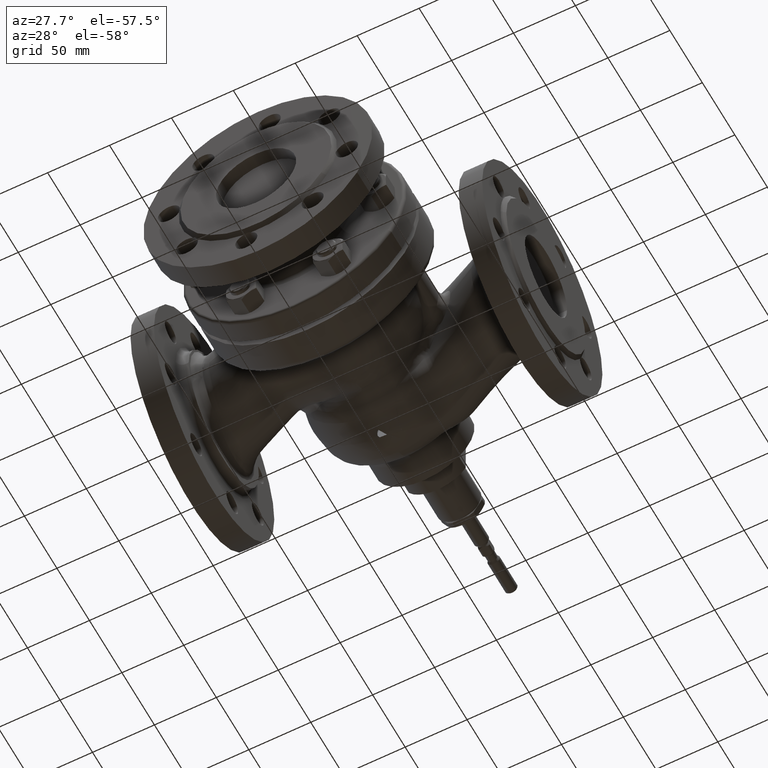
[diagram: clean part render]
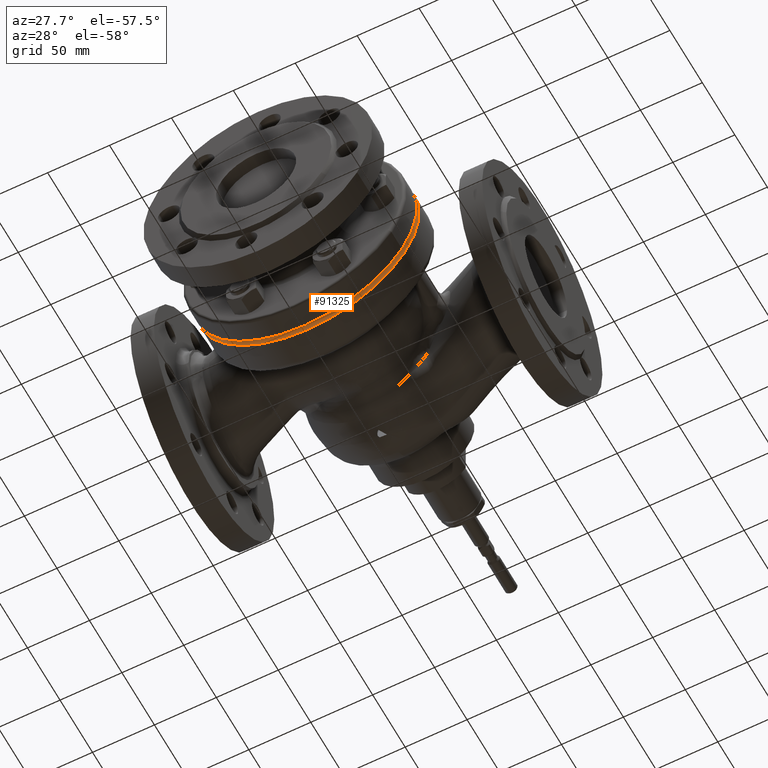
[diagram: same view with one face highlighted and labeled with its STEP entity id]
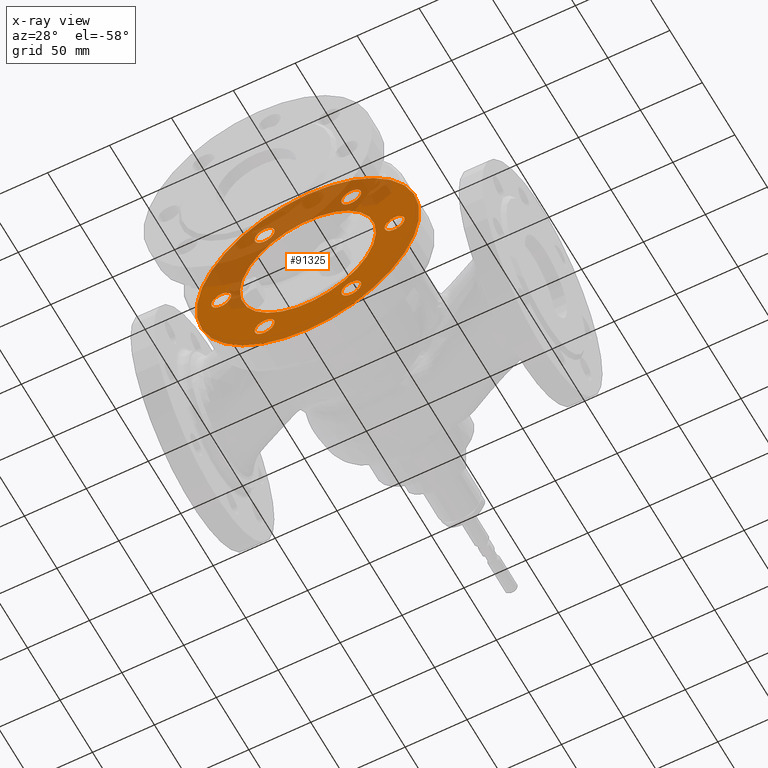
[diagram: x-ray of the same camera — body ghosted, the highlighted face saturated]
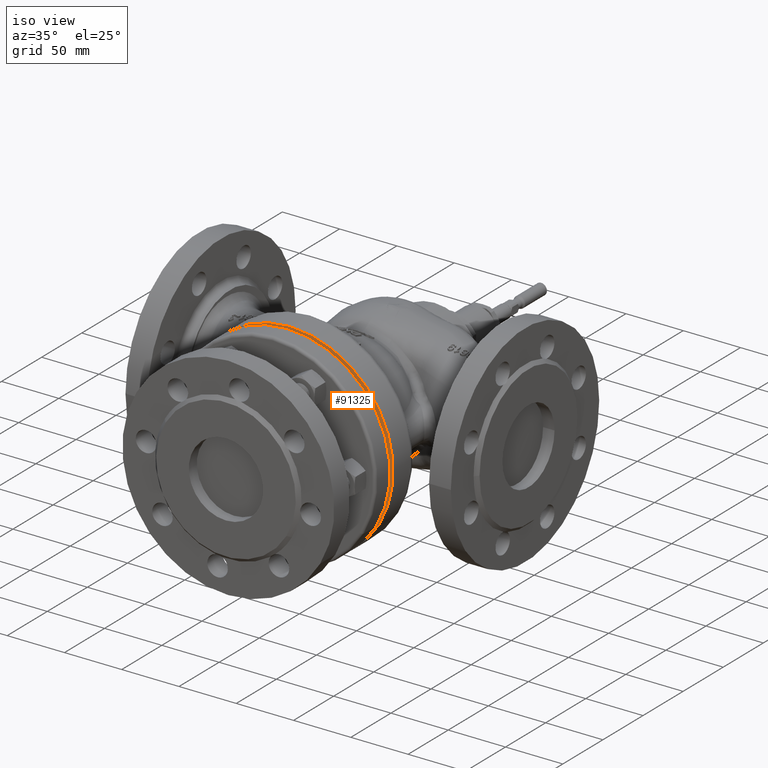
[diagram: same view with one face highlighted and labeled with its STEP entity id]
A machine part, auxiliary view. The second image highlights one B-rep face of the part: STEP entity #91325.
The next image is the same camera in x-ray: the body ghosted, the highlighted face saturated — about 38% of this face is hidden behind the body in this view.
A second angle (iso view) of the same face is appended — the face is thin or edge-on in the first view.
In plain terms, the highlighted planar face has unit normal (0, 1, 0).
Its self-contained STEP definition (entity closure, byte-faithful):
#74 = DIRECTION ( 'NONE',  ( 0.0000000000000000000, 1.000000000000000000, 0.0000000000000000000 ) ) ;
#107 = DIRECTION ( 'NONE',  ( 0.0000000000000000000, 0.0000000000000000000, 1.000000000000000000 ) ) ;
#292 = DIRECTION ( 'NONE',  ( 0.0000000000000000000, 0.0000000000000000000, 1.000000000000000000 ) ) ;
#461 = DIRECTION ( 'NONE',  ( 0.0000000000000000000, 1.541976423090495100E-016, -1.000000000000000000 ) ) ;
#1163 = EDGE_CURVE ( 'NONE', #89899, #155190, #170970, .T. ) ;
#1895 = EDGE_CURVE ( 'NONE', #111494, #47074, #165879, .T. ) ;
#2408 = DIRECTION ( 'NONE',  ( 0.8660254037844362700, 0.0000000000000000000, -0.5000000000000043300 ) ) ;
#4470 = CARTESIAN_POINT ( 'NONE',  ( 35.00000000000049700, -90.00000000000000000, -60.62177826491040400 ) ) ;
#7475 = VERTEX_POINT ( 'NONE', #70118 ) ;
#7865 = EDGE_CURVE ( 'NONE', #111752, #97873, #40907, .T. ) ;
#8305 = DIRECTION ( 'NONE',  ( -0.8660254037844432600, 0.0000000000000000000, -0.4999999999999920600 ) ) ;
#8698 = DIRECTION ( 'NONE',  ( 0.8660254037844362700, 0.0000000000000000000, -0.5000000000000043300 ) ) ;
#9993 = EDGE_CURVE ( 'NONE', #47074, #111494, #121853, .T. ) ;
#10925 = DIRECTION ( 'NONE',  ( 0.0000000000000000000, 1.000000000000000000, 0.0000000000000000000 ) ) ;
#12993 = ORIENTED_EDGE ( 'NONE', *, *, #102907, .T. ) ;
#14054 = FACE_BOUND ( 'NONE', #132637, .T. ) ;
#14297 = EDGE_CURVE ( 'NONE', #132367, #169173, #14431, .T. ) ;
#14431 = CIRCLE ( 'NONE', #60126, 8.000000000000000000 ) ;
#14493 = ORIENTED_EDGE ( 'NONE', *, *, #1895, .T. ) ;
#16442 = EDGE_CURVE ( 'NONE', #136290, #127119, #49388, .T. ) ;
#17475 = CARTESIAN_POINT ( 'NONE',  ( 4.024558463747165400E-013, -90.00000000000000000, -2.697495006043932700E-013 ) ) ;
#18435 = FACE_OUTER_BOUND ( 'NONE', #41684, .T. ) ;
#18530 = DIRECTION ( 'NONE',  ( -6.938893903907228400E-015, 0.0000000000000000000, -1.000000000000000000 ) ) ;
#20182 = CIRCLE ( 'NONE', #103222, 7.999999999999996400 ) ;
#20998 = AXIS2_PLACEMENT_3D ( 'NONE', #151590, #81859, #179751 ) ;
#25734 = AXIS2_PLACEMENT_3D ( 'NONE', #170018, #86193, #2408 ) ;
#28453 = ORIENTED_EDGE ( 'NONE', *, *, #59853, .T. ) ;
#28752 = DIRECTION ( 'NONE',  ( -0.0000000000000000000, 1.000000000000000000, 0.0000000000000000000 ) ) ;
#29100 = EDGE_LOOP ( 'NONE', ( #46672, #138188 ) ) ;
#29376 = DIRECTION ( 'NONE',  ( 0.0000000000000000000, 1.000000000000000000, -0.0000000000000000000 ) ) ;
#30862 = EDGE_CURVE ( 'NONE', #169881, #143303, #95028, .T. ) ;
#31512 = DIRECTION ( 'NONE',  ( 0.0000000000000000000, 0.0000000000000000000, 1.000000000000000000 ) ) ;
#32414 = EDGE_CURVE ( 'NONE', #143303, #169881, #73089, .T. ) ;
#36828 = CARTESIAN_POINT ( 'NONE',  ( 35.00000000000044100, -90.00000000000000000, -68.62177826491040400 ) ) ;
#37839 = AXIS2_PLACEMENT_3D ( 'NONE', #167896, #84090, #292 ) ;
#40907 = CIRCLE ( 'NONE', #137207, 54.90000000000000600 ) ;
#41684 = EDGE_LOOP ( 'NONE', ( #87191, #150300 ) ) ;
#44016 = VERTEX_POINT ( 'NONE', #115941 ) ;
#46672 = ORIENTED_EDGE ( 'NONE', *, *, #32414, .T. ) ;
#46821 = CARTESIAN_POINT ( 'NONE',  ( -63.07179676972453600, -90.00000000000000000, -4.000000000000331300 ) ) ;
#47074 = VERTEX_POINT ( 'NONE', #97797 ) ;
#49388 = CIRCLE ( 'NONE', #84726, 7.999999999999996400 ) ;
#51290 = FACE_BOUND ( 'NONE', #29100, .T. ) ;
#51310 = AXIS2_PLACEMENT_3D ( 'NONE', #112575, #28752, #126641 ) ;
#55123 = CARTESIAN_POINT ( 'NONE',  ( -76.92820323027545700, -90.00000000000000000, 3.999999999999830800 ) ) ;
#56494 = ORIENTED_EDGE ( 'NONE', *, *, #9993, .T. ) ;
#59853 = EDGE_CURVE ( 'NONE', #75343, #176502, #109263, .T. ) ;
#60045 = FACE_BOUND ( 'NONE', #179371, .T. ) ;
#60126 = AXIS2_PLACEMENT_3D ( 'NONE', #4470, #102305, #18530 ) ;
#60493 = EDGE_LOOP ( 'NONE', ( #119595, #72181 ) ) ;
#66631 = DIRECTION ( 'NONE',  ( -0.0000000000000000000, 1.000000000000000000, -0.0000000000000000000 ) ) ;
#67710 = CARTESIAN_POINT ( 'NONE',  ( -69.99999999999998600, -90.00000000000000000, -2.498001805406602200E-013 ) ) ;
#68838 = ORIENTED_EDGE ( 'NONE', *, *, #181186, .T. ) ;
#69567 = CIRCLE ( 'NONE', #98167, 90.00000000000000000 ) ;
#70118 = CARTESIAN_POINT ( 'NONE',  ( 0.0000000000000000000, -89.99999999999998600, -90.00000000000000000 ) ) ;
#72019 = CARTESIAN_POINT ( 'NONE',  ( -35.00000000000091700, -90.00000000000000000, 68.62177826491017600 ) ) ;
#72181 = ORIENTED_EDGE ( 'NONE', *, *, #118519, .F. ) ;
#72961 = CIRCLE ( 'NONE', #94673, 7.999999999999995600 ) ;
#73089 = CIRCLE ( 'NONE', #81517, 8.000000000000007100 ) ;
#73843 = ORIENTED_EDGE ( 'NONE', *, *, #1163, .T. ) ;
#74226 = CARTESIAN_POINT ( 'NONE',  ( 0.0000000000000000000, -90.00000000000000000, 0.0000000000000000000 ) ) ;
#75343 = VERTEX_POINT ( 'NONE', #174397 ) ;
#77282 = AXIS2_PLACEMENT_3D ( 'NONE', #168059, #84254, #461 ) ;
#80931 = DIRECTION ( 'NONE',  ( -0.0000000000000000000, 1.000000000000000000, 0.0000000000000000000 ) ) ;
#81517 = AXIS2_PLACEMENT_3D ( 'NONE', #150427, #66631, #164471 ) ;
#81770 = DIRECTION ( 'NONE',  ( -0.8660254037844327100, 0.0000000000000000000, 0.5000000000000103300 ) ) ;
#81859 = DIRECTION ( 'NONE',  ( 0.0000000000000000000, 1.000000000000000000, 1.665334536937735300E-016 ) ) ;
#82360 = EDGE_LOOP ( 'NONE', ( #73843, #115975 ) ) ;
#83234 = CARTESIAN_POINT ( 'NONE',  ( -35.00000000000091700, -90.00000000000000000, 52.62177826491016200 ) ) ;
#83866 = CARTESIAN_POINT ( 'NONE',  ( -34.99999999999963100, -90.00000000000000000, -60.62177826491090100 ) ) ;
#83901 = DIRECTION ( 'NONE',  ( -0.0000000000000000000, 1.000000000000000000, -0.0000000000000000000 ) ) ;
#84090 = DIRECTION ( 'NONE',  ( -0.0000000000000000000, -1.000000000000000000, 0.0000000000000000000 ) ) ;
#84254 = DIRECTION ( 'NONE',  ( 0.0000000000000000000, 1.000000000000000000, -0.0000000000000000000 ) ) ;
#84726 = AXIS2_PLACEMENT_3D ( 'NONE', #113199, #29376, #127274 ) ;
#86193 = DIRECTION ( 'NONE',  ( 0.0000000000000000000, 1.000000000000000000, 0.0000000000000000000 ) ) ;
#87191 = ORIENTED_EDGE ( 'NONE', *, *, #91962, .F. ) ;
#88265 = DIRECTION ( 'NONE',  ( 0.0000000000000000000, 1.541976423090495100E-016, -1.000000000000000000 ) ) ;
#88437 = FACE_BOUND ( 'NONE', #166881, .T. ) ;
#89899 = VERTEX_POINT ( 'NONE', #174745 ) ;
#91107 = EDGE_CURVE ( 'NONE', #169173, #132367, #130058, .T. ) ;
#91325 = ADVANCED_FACE ( 'NONE', ( #18435, #162870, #125667, #88437, #60045, #51290, #14054, #158491 ), #109377, .F. ) ;
#91962 = EDGE_CURVE ( 'NONE', #7475, #44016, #116894, .T. ) ;
#92078 = DIRECTION ( 'NONE',  ( 0.0000000000000000000, 1.000000000000000000, 0.0000000000000000000 ) ) ;
#92470 = ORIENTED_EDGE ( 'NONE', *, *, #16442, .T. ) ;
#92478 = DIRECTION ( 'NONE',  ( 0.0000000000000000000, 1.000000000000000000, 0.0000000000000000000 ) ) ;
#94362 = AXIS2_PLACEMENT_3D ( 'NONE', #167700, #83901, #107 ) ;
#94673 = AXIS2_PLACEMENT_3D ( 'NONE', #175932, #92078, #8305 ) ;
#94705 = CARTESIAN_POINT ( 'NONE',  ( 35.00000000000049700, -90.00000000000000000, -60.62177826491040400 ) ) ;
#95028 = CIRCLE ( 'NONE', #94362, 8.000000000000007100 ) ;
#97797 = CARTESIAN_POINT ( 'NONE',  ( 63.07179676972452100, -90.00000000000000000, 4.000000000000776300 ) ) ;
#97873 = VERTEX_POINT ( 'NONE', #112795 ) ;
#97912 = DIRECTION ( 'NONE',  ( -0.8660254037844432600, 0.0000000000000000000, -0.4999999999999920600 ) ) ;
#98167 = AXIS2_PLACEMENT_3D ( 'NONE', #74226, #172104, #88265 ) ;
#99239 = ORIENTED_EDGE ( 'NONE', *, *, #91107, .T. ) ;
#102305 = DIRECTION ( 'NONE',  ( 0.0000000000000000000, 1.000000000000000000, 0.0000000000000000000 ) ) ;
#102713 = EDGE_LOOP ( 'NONE', ( #28453, #68838 ) ) ;
#102907 = EDGE_CURVE ( 'NONE', #127119, #136290, #20182, .T. ) ;
#103222 = AXIS2_PLACEMENT_3D ( 'NONE', #67710, #165549, #81770 ) ;
#108777 = DIRECTION ( 'NONE',  ( -6.938893903907228400E-015, 0.0000000000000000000, -1.000000000000000000 ) ) ;
#109263 = CIRCLE ( 'NONE', #113631, 7.999999999999995600 ) ;
#109377 = PLANE ( 'NONE',  #20998 ) ;
#111494 = VERTEX_POINT ( 'NONE', #169498 ) ;
#111752 = VERTEX_POINT ( 'NONE', #115621 ) ;
#112575 = CARTESIAN_POINT ( 'NONE',  ( 34.99999999999921100, -90.00000000000000000, 60.62177826491115000 ) ) ;
#112795 = CARTESIAN_POINT ( 'NONE',  ( 47.54479466778539600, -90.00000000000000000, -27.44999999996682800 ) ) ;
#113199 = CARTESIAN_POINT ( 'NONE',  ( -69.99999999999998600, -90.00000000000000000, -2.498001805406602200E-013 ) ) ;
#113602 = AXIS2_PLACEMENT_3D ( 'NONE', #164706, #80931, #178828 ) ;
#113631 = AXIS2_PLACEMENT_3D ( 'NONE', #83866, #74, #97912 ) ;
#115327 = DIRECTION ( 'NONE',  ( -0.0000000000000000000, -1.000000000000000000, 0.0000000000000000000 ) ) ;
#115621 = CARTESIAN_POINT ( 'NONE',  ( -47.54479466778458600, -90.00000000000000000, 27.44999999996629500 ) ) ;
#115941 = CARTESIAN_POINT ( 'NONE',  ( -1.102182119232617900E-014, -90.00000000000000000, 90.00000000000000000 ) ) ;
#115975 = ORIENTED_EDGE ( 'NONE', *, *, #179045, .T. ) ;
#116894 = CIRCLE ( 'NONE', #77282, 90.00000000000000000 ) ;
#118519 = EDGE_CURVE ( 'NONE', #97873, #111752, #157818, .T. ) ;
#119595 = ORIENTED_EDGE ( 'NONE', *, *, #7865, .F. ) ;
#121853 = CIRCLE ( 'NONE', #145551, 7.999999999999997300 ) ;
#125667 = FACE_BOUND ( 'NONE', #82360, .T. ) ;
#126641 = DIRECTION ( 'NONE',  ( 0.8660254037844397100, 0.0000000000000000000, 0.4999999999999983900 ) ) ;
#127119 = VERTEX_POINT ( 'NONE', #55123 ) ;
#127274 = DIRECTION ( 'NONE',  ( -0.8660254037844327100, 0.0000000000000000000, 0.5000000000000103300 ) ) ;
#127639 = AXIS2_PLACEMENT_3D ( 'NONE', #94705, #10925, #108777 ) ;
#130058 = CIRCLE ( 'NONE', #127639, 8.000000000000000000 ) ;
#132367 = VERTEX_POINT ( 'NONE', #158419 ) ;
#132637 = EDGE_LOOP ( 'NONE', ( #14493, #56494 ) ) ;
#135663 = CARTESIAN_POINT ( 'NONE',  ( 28.07179676972369000, -90.00000000000000000, 56.62177826491116400 ) ) ;
#136290 = VERTEX_POINT ( 'NONE', #46821 ) ;
#137207 = AXIS2_PLACEMENT_3D ( 'NONE', #17475, #115327, #31512 ) ;
#138188 = ORIENTED_EDGE ( 'NONE', *, *, #30862, .T. ) ;
#138714 = CARTESIAN_POINT ( 'NONE',  ( -28.07179676972408100, -90.00000000000000000, -56.62177826491096500 ) ) ;
#143303 = VERTEX_POINT ( 'NONE', #72019 ) ;
#145551 = AXIS2_PLACEMENT_3D ( 'NONE', #176323, #92478, #8698 ) ;
#145785 = EDGE_CURVE ( 'NONE', #44016, #7475, #69567, .T. ) ;
#149146 = ORIENTED_EDGE ( 'NONE', *, *, #14297, .T. ) ;
#149666 = CIRCLE ( 'NONE', #51310, 8.000000000000005300 ) ;
#150300 = ORIENTED_EDGE ( 'NONE', *, *, #145785, .F. ) ;
#150427 = CARTESIAN_POINT ( 'NONE',  ( -35.00000000000091700, -90.00000000000000000, 60.62177826491016200 ) ) ;
#151590 = CARTESIAN_POINT ( 'NONE',  ( 0.0000000000000000000, -90.00000000000000000, 0.0000000000000000000 ) ) ;
#155190 = VERTEX_POINT ( 'NONE', #135663 ) ;
#157818 = CIRCLE ( 'NONE', #37839, 54.90000000000000600 ) ;
#158419 = CARTESIAN_POINT ( 'NONE',  ( 35.00000000000055400, -90.00000000000000000, -52.62177826491040400 ) ) ;
#158491 = FACE_BOUND ( 'NONE', #60493, .T. ) ;
#162870 = FACE_BOUND ( 'NONE', #102713, .T. ) ;
#164471 = DIRECTION ( 'NONE',  ( 0.0000000000000000000, 0.0000000000000000000, 1.000000000000000000 ) ) ;
#164706 = CARTESIAN_POINT ( 'NONE',  ( 34.99999999999921100, -90.00000000000000000, 60.62177826491115000 ) ) ;
#165549 = DIRECTION ( 'NONE',  ( 0.0000000000000000000, 1.000000000000000000, -0.0000000000000000000 ) ) ;
#165879 = CIRCLE ( 'NONE', #25734, 7.999999999999997300 ) ;
#166881 = EDGE_LOOP ( 'NONE', ( #12993, #92470 ) ) ;
#167700 = CARTESIAN_POINT ( 'NONE',  ( -35.00000000000091700, -90.00000000000000000, 60.62177826491016200 ) ) ;
#167896 = CARTESIAN_POINT ( 'NONE',  ( 4.024558463747165400E-013, -90.00000000000000000, -2.697495006043932700E-013 ) ) ;
#168059 = CARTESIAN_POINT ( 'NONE',  ( 0.0000000000000000000, -90.00000000000000000, 0.0000000000000000000 ) ) ;
#169173 = VERTEX_POINT ( 'NONE', #36828 ) ;
#169498 = CARTESIAN_POINT ( 'NONE',  ( 76.92820323027550000, -90.00000000000000000, -3.999999999999290800 ) ) ;
#169881 = VERTEX_POINT ( 'NONE', #83234 ) ;
#170018 = CARTESIAN_POINT ( 'NONE',  ( 70.00000000000000000, -90.00000000000000000, 7.424616477180734400E-013 ) ) ;
#170970 = CIRCLE ( 'NONE', #113602, 8.000000000000005300 ) ;
#172104 = DIRECTION ( 'NONE',  ( 0.0000000000000000000, 1.000000000000000000, -0.0000000000000000000 ) ) ;
#174397 = CARTESIAN_POINT ( 'NONE',  ( -41.92820323027517300, -90.00000000000000000, -64.62177826491083000 ) ) ;
#174745 = CARTESIAN_POINT ( 'NONE',  ( 41.92820323027473300, -90.00000000000000000, 64.62177826491114300 ) ) ;
#175932 = CARTESIAN_POINT ( 'NONE',  ( -34.99999999999963100, -90.00000000000000000, -60.62177826491090100 ) ) ;
#176323 = CARTESIAN_POINT ( 'NONE',  ( 70.00000000000000000, -90.00000000000000000, 7.424616477180734400E-013 ) ) ;
#176502 = VERTEX_POINT ( 'NONE', #138714 ) ;
#178828 = DIRECTION ( 'NONE',  ( 0.8660254037844397100, 0.0000000000000000000, 0.4999999999999983900 ) ) ;
#179045 = EDGE_CURVE ( 'NONE', #155190, #89899, #149666, .T. ) ;
#179371 = EDGE_LOOP ( 'NONE', ( #99239, #149146 ) ) ;
#179751 = DIRECTION ( 'NONE',  ( 0.0000000000000000000, 1.665334536937735300E-016, -1.000000000000000000 ) ) ;
#181186 = EDGE_CURVE ( 'NONE', #176502, #75343, #72961, .T. ) ;